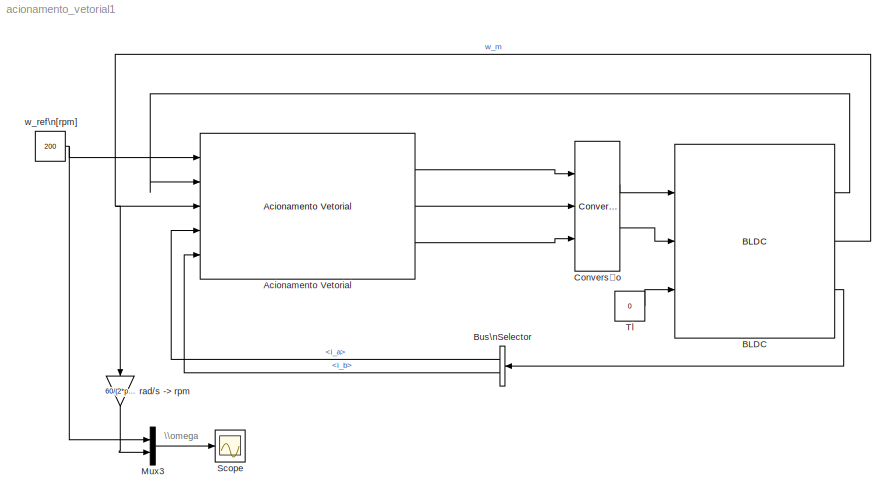
MODEL acionamento_vetorial1
KIND model
BLOCK [Reference] Acionamento Vetorial  REF=BLDC/Acionamento Vetorial
  P = 8
  Ports = [5, 3]
  SID = 272
  SourceBlock = BLDC/Acionamento Vetorial
  SourceType = Acionamento Vetorial
BLOCK [Reference] BLDC  REF=BLDC/BLDC
  F_slip = 0
  F_stick = 0
  J = 3.84e-7 + 1e-4
  Kd = 0
  Ke = 11.3e-3
  Kt = 11.3e-3
  L = 2.35e-3/2
  P = 8
  Ports = [3, 3]
  R = 23.9/2
  SID = 243
  SourceBlock = BLDC/BLDC
  SourceType = Simulador de um motor BLDC
  default_fcem = on
  fcem_a = fcem_a
  fcem_b = fcem_b
  fcem_c = fcem_c
BLOCK [BusSelector] Bus\nSelector
  OutputSignals = Correntes.i_a,Correntes.i_b
  Ports = [1, 2]
  SID = 198
BLOCK [Reference] Conversão  REF=BLDC/Conversão
  Ports = [3, 2]
  SID = 273
  SourceBlock = BLDC/Conversão
  SourceType = SubSystem
BLOCK [Mux] Mux3
  DisplayOption = bar
  Inputs = 2
  Ports = [2, 1]
  SID = 244
BLOCK [Scope] Scope
  DataFormat = StructureWithTime
  Decimation = 10
  Floating = off
  LimitDataPoints = off
  NumInputPorts = 1
  Ports = [1]
  SID = 199
  SampleTime = 0
  ShowLegends = off
  TimeRange = 10
  YMax = 200
  YMin = 20
BLOCK [Constant] Tl
  SID = 235
  Value = 0
BLOCK [Gain] rad//s -> rpm
  Gain = 60/(2*pi)
  OutDataTypeStr = Inherit: Inherit via internal rule
  ParamDataTypeStr = Inherit: Inherit via internal rule
  SID = 268
  SaturateOnIntegerOverflow = off
BLOCK [Constant] w_ref\n[rpm]
  SID = 222
  Value = 200
ANNOTATION (root): \\omega
LINE Acionamento Vetorial:1 -> Conversão:1
LINE Acionamento Vetorial:2 -> Conversão:2
LINE Acionamento Vetorial:3 -> Conversão:3
LINE BLDC:1 -> Acionamento Vetorial:2
NET BLDC:2 -> Acionamento Vetorial:3, rad//s -> rpm:1
LINE BLDC:3 -> Bus\nSelector:1
LINE Bus\nSelector:1 -> Acionamento Vetorial:4
LINE Bus\nSelector:2 -> Acionamento Vetorial:5
LINE Conversão:1 -> BLDC:1
LINE Conversão:2 -> BLDC:2
LINE Mux3:1 -> Scope:1
LINE Tl:1 -> BLDC:3
LINE rad//s -> rpm:1 -> Mux3:2
NET w_ref\n[rpm]:1 -> Acionamento Vetorial:1, Mux3:1
note: NET lines group one-source signal fan-out (src -> all destinations, sorted); 1:1 wires keep LINE
